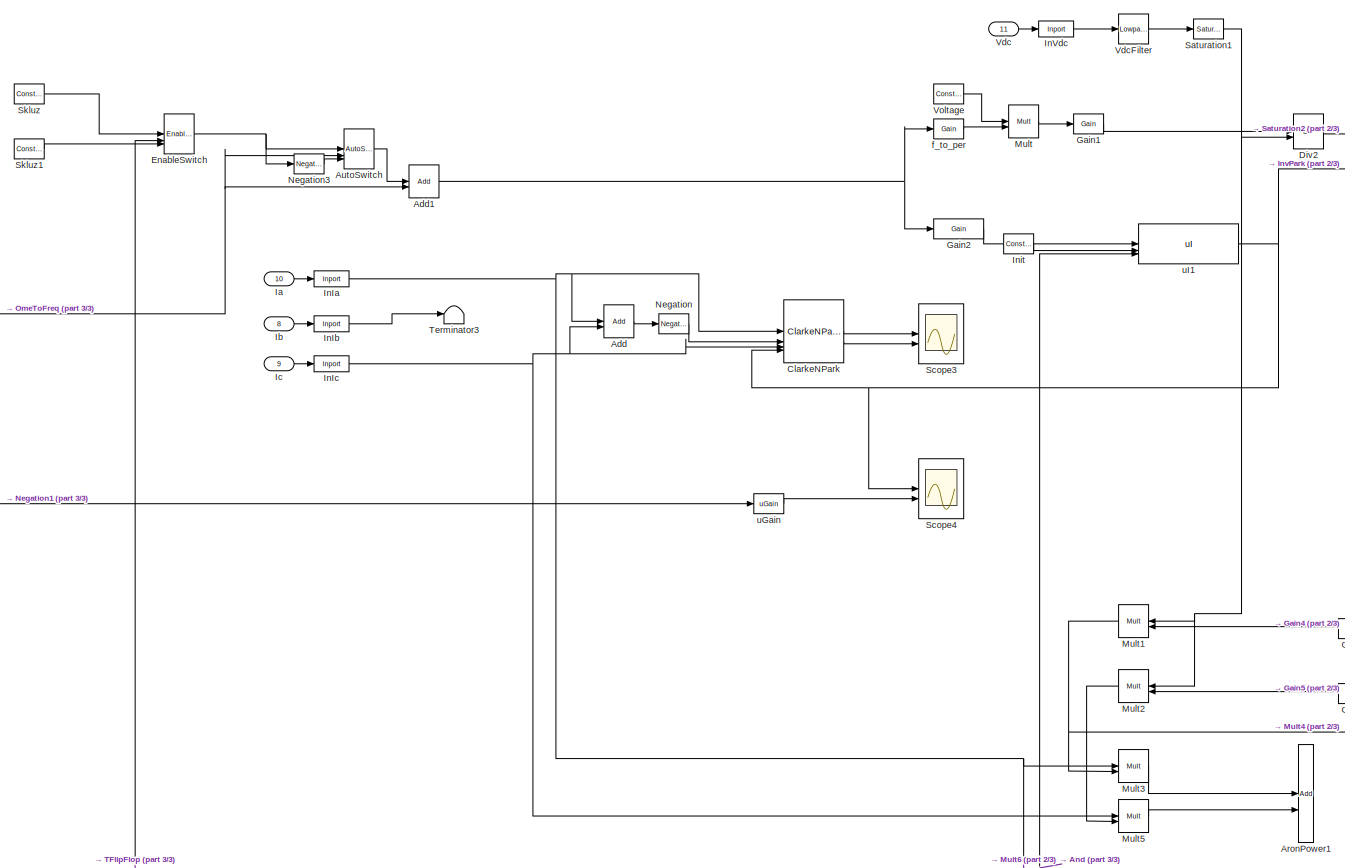
[diagram: root canvas - part 1/3, center side, full height]
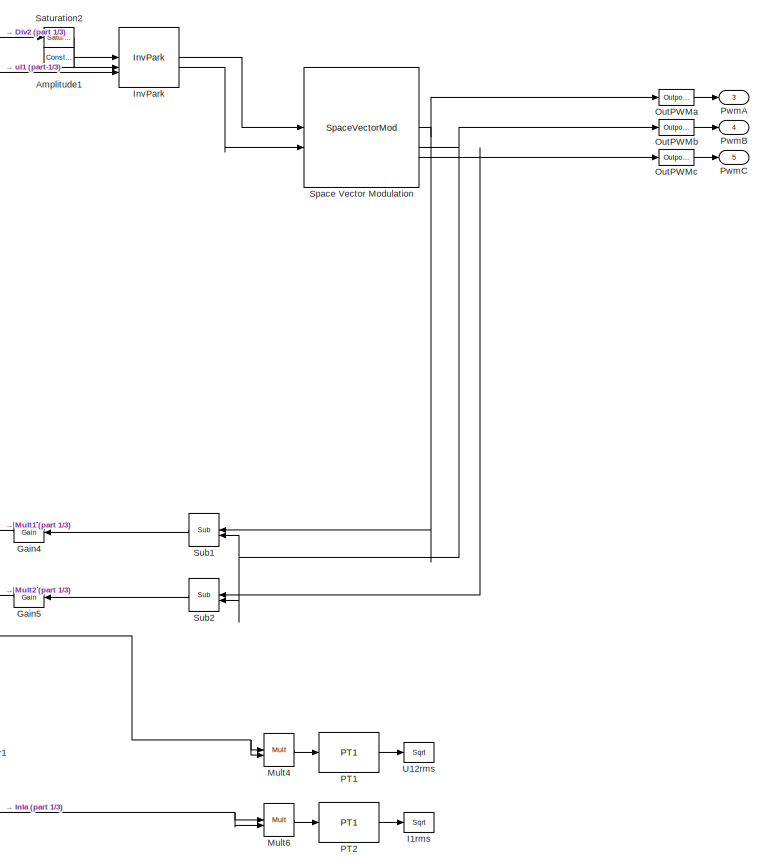
[diagram: root canvas - part 2/3, right side, full height]
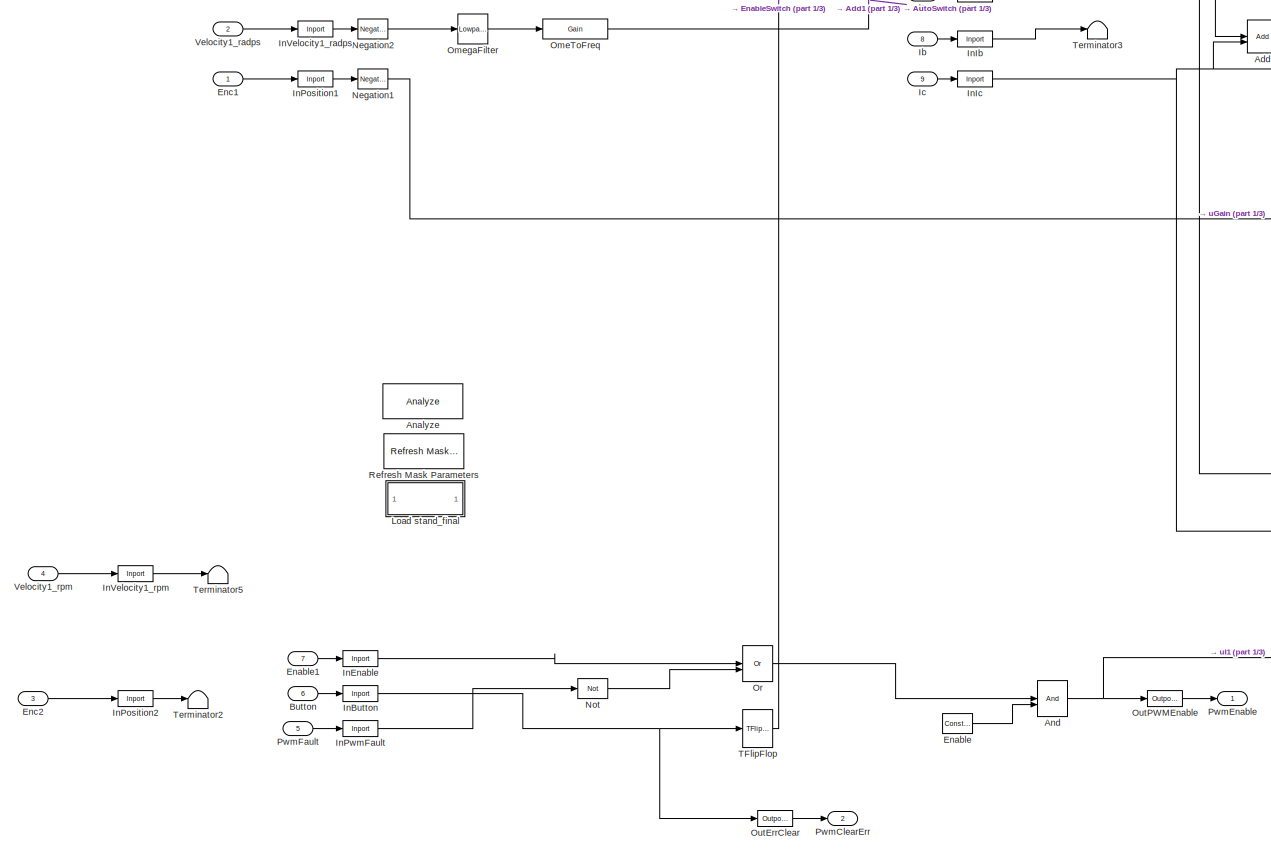
[diagram: root canvas - part 3/3, left side, full height]
MODEL slx_df895cf2d0f7
KIND model
CONFIG AbsTol = auto
CONFIG EnableMultiTasking = on
CONFIG FixedStep = auto
CONFIG MaxStep = auto
CONFIG MinStep = auto
CONFIG RelTol = 1e-3
CONFIG SampleTimeConstraint = Unconstrained
CONFIG SolverName = ode45
CONFIG StartTime = 0.0
CONFIG StopTime = 10.0
BLOCK [Reference] Add  REF=Math/Add
  SourceBlock = Math/Add
  SourceProductName = X2C Math
  SourceType = X2C - Add
BLOCK [Reference] Add1  REF=Math/Add
  SourceBlock = Math/Add
  SourceProductName = X2C Math
  SourceType = X2C - Add
BLOCK [Reference] Amplitude1  REF=General/Constant
  SourceBlock = General/Constant
  SourceProductName = X2C General
  SourceType = X2C - Constant
BLOCK [Reference] Analyze  REF=Basic/Analyze
  SourceBlock = Basic/Analyze
  SourceProductName = X2C Basic
  SourceType = X2C System Block
BLOCK [Reference] And  REF=General/And
  SourceBlock = General/And
  SourceProductName = X2C General
  SourceType = X2C - And
BLOCK [Reference] AronPower1  REF=Math/Add
  SourceBlock = Math/Add
  SourceProductName = X2C Math
  SourceType = X2C - Add
BLOCK [Reference] AutoSwitch  REF=General/AutoSwitch
  SourceBlock = General/AutoSwitch
  SourceProductName = X2C General
  SourceType = X2C - AutoSwitch
BLOCK [Inport] Button
  Port = 6
BLOCK [Reference] ClarkeNPark  REF=MotorControl/ClarkeNPark
  SourceBlock = MotorControl/ClarkeNPark
  SourceProductName = X2C MotorControl
  SourceType = X2C - ClarkeNPark
BLOCK [Reference] Div2  REF=Math/Div
  SourceBlock = Math/Div
  SourceProductName = X2C Math
  SourceType = X2C - Div
BLOCK [Reference] Enable  REF=General/Constant
  SourceBlock = General/Constant
  SourceProductName = X2C General
  SourceType = X2C - Constant
BLOCK [Inport] Enable1
  Port = 7
BLOCK [Reference] EnableSwitch  REF=StateControl/EnableSwitch
  SourceBlock = StateControl/EnableSwitch
  SourceProductName = X2C StateControl
  SourceType = X2C - EnableSwitch
BLOCK [Inport] Enc1
BLOCK [Inport] Enc2
  Port = 3
BLOCK [Reference] Gain1  REF=General/Gain
  SourceBlock = General/Gain
  SourceProductName = X2C General
  SourceType = X2C - Gain
BLOCK [Reference] Gain2  REF=General/Gain
  SourceBlock = General/Gain
  SourceProductName = X2C General
  SourceType = X2C - Gain
BLOCK [Reference] Gain4  REF=General/Gain
  SourceBlock = General/Gain
  SourceProductName = X2C General
  SourceType = X2C - Gain
BLOCK [Reference] Gain5  REF=General/Gain
  SourceBlock = General/Gain
  SourceProductName = X2C General
  SourceType = X2C - Gain
BLOCK [Reference] I1rms  REF=Math/Sqrt
  SourceBlock = Math/Sqrt
  SourceProductName = X2C Math
  SourceType = X2C - Sqrt
BLOCK [Inport] Ia
  Port = 10
BLOCK [Inport] Ib
  Port = 8
BLOCK [Inport] Ic
  Port = 9
BLOCK [Reference] InButton  REF=General/Inport
  SourceBlock = General/Inport
  SourceProductName = X2C General
  SourceType = X2C - Inport
BLOCK [Reference] InEnable  REF=General/Inport
  SourceBlock = General/Inport
  SourceProductName = X2C General
  SourceType = X2C - Inport
BLOCK [Reference] InIa  REF=General/Inport
  SourceBlock = General/Inport
  SourceProductName = X2C General
  SourceType = X2C - Inport
BLOCK [Reference] InIb  REF=General/Inport
  SourceBlock = General/Inport
  SourceProductName = X2C General
  SourceType = X2C - Inport
BLOCK [Reference] InIc  REF=General/Inport
  SourceBlock = General/Inport
  SourceProductName = X2C General
  SourceType = X2C - Inport
BLOCK [Reference] InPosition1  REF=General/Inport
  SourceBlock = General/Inport
  SourceProductName = X2C General
  SourceType = X2C - Inport
BLOCK [Reference] InPosition2  REF=General/Inport
  SourceBlock = General/Inport
  SourceProductName = X2C General
  SourceType = X2C - Inport
BLOCK [Reference] InPwmFault  REF=General/Inport
  SourceBlock = General/Inport
  SourceProductName = X2C General
  SourceType = X2C - Inport
BLOCK [Reference] InVdc  REF=General/Inport
  SourceBlock = General/Inport
  SourceProductName = X2C General
  SourceType = X2C - Inport
BLOCK [Reference] InVelocity1_radps  REF=General/Inport
  SourceBlock = General/Inport
  SourceProductName = X2C General
  SourceType = X2C - Inport
BLOCK [Reference] InVelocity1_rpm  REF=General/Inport
  SourceBlock = General/Inport
  SourceProductName = X2C General
  SourceType = X2C - Inport
BLOCK [Reference] Init  REF=General/Constant
  SourceBlock = General/Constant
  SourceProductName = X2C General
  SourceType = X2C - Constant
BLOCK [Reference] InvPark  REF=MotorControl/InvPark
  SourceBlock = MotorControl/InvPark
  SourceProductName = X2C MotorControl
  SourceType = X2C - InvPark
BLOCK [SubSystem] Load stand_final
  InitFcn = stand_final
  OpenFcn = stand_final
BLOCK [Reference] Mult  REF=Math/Mult
  SourceBlock = Math/Mult
  SourceProductName = X2C Math
  SourceType = X2C - Mult
BLOCK [Reference] Mult1  REF=Math/Mult
  SourceBlock = Math/Mult
  SourceProductName = X2C Math
  SourceType = X2C - Mult
BLOCK [Reference] Mult2  REF=Math/Mult
  SourceBlock = Math/Mult
  SourceProductName = X2C Math
  SourceType = X2C - Mult
BLOCK [Reference] Mult3  REF=Math/Mult
  SourceBlock = Math/Mult
  SourceProductName = X2C Math
  SourceType = X2C - Mult
BLOCK [Reference] Mult4  REF=Math/Mult
  SourceBlock = Math/Mult
  SourceProductName = X2C Math
  SourceType = X2C - Mult
BLOCK [Reference] Mult5  REF=Math/Mult
  SourceBlock = Math/Mult
  SourceProductName = X2C Math
  SourceType = X2C - Mult
BLOCK [Reference] Mult6  REF=Math/Mult
  SourceBlock = Math/Mult
  SourceProductName = X2C Math
  SourceType = X2C - Mult
BLOCK [Reference] Negation  REF=Math/Negation
  SourceBlock = Math/Negation
  SourceProductName = X2C Math
  SourceType = X2C - Negation
BLOCK [Reference] Negation1  REF=Math/Negation
  SourceBlock = Math/Negation
  SourceProductName = X2C Math
  SourceType = X2C - Negation
BLOCK [Reference] Negation2  REF=Math/Negation
  SourceBlock = Math/Negation
  SourceProductName = X2C Math
  SourceType = X2C - Negation
BLOCK [Reference] Negation3  REF=Math/Negation
  SourceBlock = Math/Negation
  SourceProductName = X2C Math
  SourceType = X2C - Negation
BLOCK [Reference] Not  REF=General/Not
  SourceBlock = General/Not
  SourceProductName = X2C General
  SourceType = X2C - Not
BLOCK [Reference] OmeToFreq  REF=General/Gain
  SourceBlock = General/Gain
  SourceProductName = X2C General
  SourceType = X2C - Gain
BLOCK [Reference] OmegaFilter  REF=Filter/LowpassBiQ
  SourceBlock = Filter/LowpassBiQ
  SourceProductName = X2C Filter
  SourceType = X2C - LowpassBiQ
BLOCK [Reference] Or  REF=General/Or
  SourceBlock = General/Or
  SourceProductName = X2C General
  SourceType = X2C - Or
BLOCK [Reference] OutErrClear  REF=General/Outport
  SourceBlock = General/Outport
  SourceProductName = X2C General
  SourceType = X2C - Outport
BLOCK [Reference] OutPWMEnable  REF=General/Outport
  SourceBlock = General/Outport
  SourceProductName = X2C General
  SourceType = X2C - Outport
BLOCK [Reference] OutPWMa  REF=General/Outport
  SourceBlock = General/Outport
  SourceProductName = X2C General
  SourceType = X2C - Outport
BLOCK [Reference] OutPWMb  REF=General/Outport
  SourceBlock = General/Outport
  SourceProductName = X2C General
  SourceType = X2C - Outport
BLOCK [Reference] OutPWMc  REF=General/Outport
  SourceBlock = General/Outport
  SourceProductName = X2C General
  SourceType = X2C - Outport
BLOCK [Reference] PT1  REF=Control/PT1
  SourceBlock = Control/PT1
  SourceProductName = X2C Control
  SourceType = X2C - PT1
BLOCK [Reference] PT2  REF=Control/PT1
  SourceBlock = Control/PT1
  SourceProductName = X2C Control
  SourceType = X2C - PT1
BLOCK [Outport] PwmA
  Port = 3
BLOCK [Outport] PwmB
  Port = 4
BLOCK [Outport] PwmC
  Port = 5
BLOCK [Outport] PwmClearErr
  Port = 2
BLOCK [Outport] PwmEnable
BLOCK [Inport] PwmFault
  Port = 5
BLOCK [Reference] Refresh Mask Parameters  REF=Basic/Refresh Mask Parameters
  SourceBlock = Basic/Refresh Mask Parameters
  SourceProductName = X2C Basic
  SourceType = X2C System Block
BLOCK [Reference] Saturation1  REF=General/Saturation
  SourceBlock = General/Saturation
  SourceProductName = X2C General
  SourceType = X2C - Saturation
BLOCK [Reference] Saturation2  REF=General/Saturation
  SourceBlock = General/Saturation
  SourceProductName = X2C General
  SourceType = X2C - Saturation
BLOCK [Scope] Scope3
  Floating = off
  NameLocation = top
  NumInputPorts = 2
  ScopeSpecificationString = Simulink.scopes.TimeScopeBlockCfg('CurrentConfiguration', extmgr.ConfigurationSet(extmgr.Configuration('Core','General UI',true),extmgr.Configuration('Core','Source UI',true),extmgr.Configuration('Sources','WiredSimulink',true,'DataLoggingVariableName','ScopeData1'),extmgr.Configuration('Visuals','Time Domain',true,'SerializedDisplays',{struct('MinYLimReal','-0.45212','MaxYLimReal','2.25034','YLab...<+2044ch>
BLOCK [Scope] Scope4
  Floating = off
  NameLocation = top
  NumInputPorts = 2
  ScopeSpecificationString = Simulink.scopes.TimeScopeBlockCfg('CurrentConfiguration', extmgr.ConfigurationSet(extmgr.Configuration('Core','General UI',true),extmgr.Configuration('Core','Source UI',true),extmgr.Configuration('Sources','WiredSimulink',true),extmgr.Configuration('Visuals','Time Domain',true,'SerializedDisplays',{struct('MinYLimReal','-0.45212','MaxYLimReal','2.25034','YLabelReal','','MinYLimMag','0.00000','MaxY...<+2157ch>
BLOCK [Reference] Skluz  REF=General/Constant
  SourceBlock = General/Constant
  SourceProductName = X2C General
  SourceType = X2C - Constant
BLOCK [Reference] Skluz1  REF=General/Constant
  SourceBlock = General/Constant
  SourceProductName = X2C General
  SourceType = X2C - Constant
BLOCK [Reference] Space Vector Modulation  REF=MotorControl/SpaceVectorMod
  SourceBlock = MotorControl/SpaceVectorMod
  SourceProductName = X2C MotorControl
  SourceType = X2C - SpaceVectorMod
BLOCK [Reference] Sub1  REF=Math/Sub
  SourceBlock = Math/Sub
  SourceProductName = X2C Math
  SourceType = X2C - Sub
BLOCK [Reference] Sub2  REF=Math/Sub
  SourceBlock = Math/Sub
  SourceProductName = X2C Math
  SourceType = X2C - Sub
BLOCK [Reference] TFlipFlop  REF=StateControl/TFlipFlop
  SourceBlock = StateControl/TFlipFlop
  SourceProductName = X2C StateControl
  SourceType = X2C - TFlipFlop
BLOCK [Terminator] Terminator2
BLOCK [Terminator] Terminator3
BLOCK [Terminator] Terminator5
BLOCK [Reference] U12rms  REF=Math/Sqrt
  SourceBlock = Math/Sqrt
  SourceProductName = X2C Math
  SourceType = X2C - Sqrt
BLOCK [Inport] Vdc
  Port = 11
BLOCK [Reference] VdcFilter  REF=Filter/LowpassBiQ
  SourceBlock = Filter/LowpassBiQ
  SourceProductName = X2C Filter
  SourceType = X2C - LowpassBiQ
BLOCK [Inport] Velocity1_radps
  Port = 2
BLOCK [Inport] Velocity1_rpm
  Port = 4
BLOCK [Reference] Voltage  REF=General/Constant
  SourceBlock = General/Constant
  SourceProductName = X2C General
  SourceType = X2C - Constant
BLOCK [Reference] f_to_per  REF=General/Gain
  SourceBlock = General/Gain
  SourceProductName = X2C General
  SourceType = X2C - Gain
BLOCK [Reference] uGain  REF=General/uGain
  SourceBlock = General/uGain
  SourceProductName = X2C General
  SourceType = X2C - uGain
BLOCK [Reference] uI1  REF=Control/uI
  SourceBlock = Control/uI
  SourceProductName = X2C Control
  SourceType = X2C - uI
NET Add1:1 -> Gain2:1, f_to_per:1
LINE Add:1 -> Negation:1
LINE Amplitude1:1 -> InvPark:2
NET And:1 -> OutPWMEnable:1, uI1:3
LINE AutoSwitch:1 -> Add1:1
LINE Button:1 -> InButton:1
LINE ClarkeNPark:1 -> Scope3:1
LINE ClarkeNPark:2 -> Scope3:2
LINE Div2:1 -> Saturation2:1
LINE Enable1:1 -> InEnable:1
LINE Enable:1 -> And:2
NET EnableSwitch:1 -> AutoSwitch:1, Negation3:1
LINE Enc1:1 -> InPosition1:1
LINE Enc2:1 -> InPosition2:1
LINE Gain1:1 -> Div2:1
LINE Gain2:1 -> uI1:1
LINE Gain4:1 -> Mult1:2
LINE Gain5:1 -> Mult2:2
LINE Ia:1 -> InIa:1
LINE Ib:1 -> InIb:1
LINE Ic:1 -> InIc:1
NET InButton:1 -> OutErrClear:1, TFlipFlop:1
LINE InEnable:1 -> Or:1
NET InIa:1 -> Add:1, ClarkeNPark:1, Mult3:1, Mult6:1, Mult6:2
LINE InIb:1 -> Terminator3:1
NET InIc:1 -> Add:2, ClarkeNPark:3, Mult5:1
LINE InPosition1:1 -> Negation1:1
LINE InPosition2:1 -> Terminator2:1
LINE InPwmFault:1 -> Not:1
LINE InVdc:1 -> VdcFilter:1
LINE InVelocity1_radps:1 -> Negation2:1
LINE InVelocity1_rpm:1 -> Terminator5:1
LINE Init:1 -> uI1:2
LINE InvPark:1 -> Space Vector Modulation:1
LINE InvPark:2 -> Space Vector Modulation:2
NET Mult1:1 -> Mult3:2, Mult4:1, Mult4:2
LINE Mult2:1 -> Mult5:2
LINE Mult3:1 -> AronPower1:1
LINE Mult4:1 -> PT1:1
LINE Mult5:1 -> AronPower1:2
LINE Mult6:1 -> PT2:1
LINE Mult:1 -> Gain1:1
LINE Negation1:1 -> uGain:1
LINE Negation2:1 -> OmegaFilter:1
LINE Negation3:1 -> AutoSwitch:3
LINE Negation:1 -> ClarkeNPark:2
LINE Not:1 -> Or:2
NET OmeToFreq:1 -> Add1:2, AutoSwitch:2
LINE OmegaFilter:1 -> OmeToFreq:1
LINE Or:1 -> And:1
LINE OutErrClear:1 -> PwmClearErr:1
LINE OutPWMEnable:1 -> PwmEnable:1
LINE OutPWMa:1 -> PwmA:1
LINE OutPWMb:1 -> PwmB:1
LINE OutPWMc:1 -> PwmC:1
LINE PT1:1 -> U12rms:1
LINE PT2:1 -> I1rms:1
LINE PwmFault:1 -> InPwmFault:1
NET Saturation1:1 -> Div2:2, Mult1:1, Mult2:1
LINE Saturation2:1 -> InvPark:1
LINE Skluz1:1 -> EnableSwitch:3
LINE Skluz:1 -> EnableSwitch:1
NET Space Vector Modulation:1 -> OutPWMa:1, Sub1:1
NET Space Vector Modulation:2 -> OutPWMb:1, Sub1:2, Sub2:2
NET Space Vector Modulation:3 -> OutPWMc:1, Sub2:1
LINE Sub1:1 -> Gain4:1
LINE Sub2:1 -> Gain5:1
LINE TFlipFlop:1 -> EnableSwitch:2
LINE Vdc:1 -> InVdc:1
LINE VdcFilter:1 -> Saturation1:1
LINE Velocity1_radps:1 -> InVelocity1_radps:1
LINE Velocity1_rpm:1 -> InVelocity1_rpm:1
LINE Voltage:1 -> Mult:1
LINE f_to_per:1 -> Mult:2
LINE uGain:1 -> Scope4:2
NET uI1:1 -> ClarkeNPark:4, InvPark:3, Scope4:1
note: NET lines group one-source signal fan-out (src -> all destinations, sorted); 1:1 wires keep LINE
